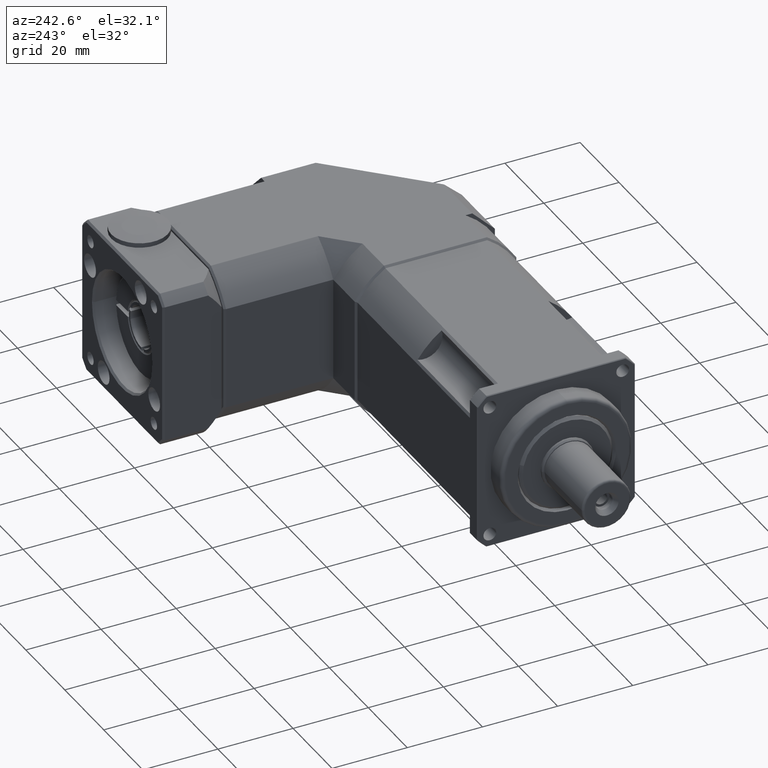
[diagram: clean part render]
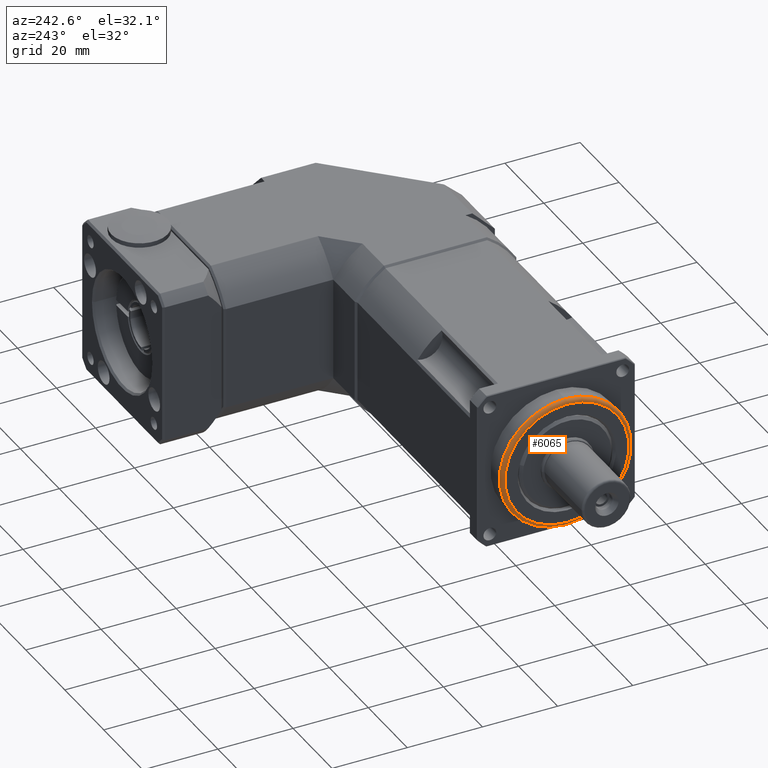
[diagram: same view with one face highlighted and labeled with its STEP entity id]
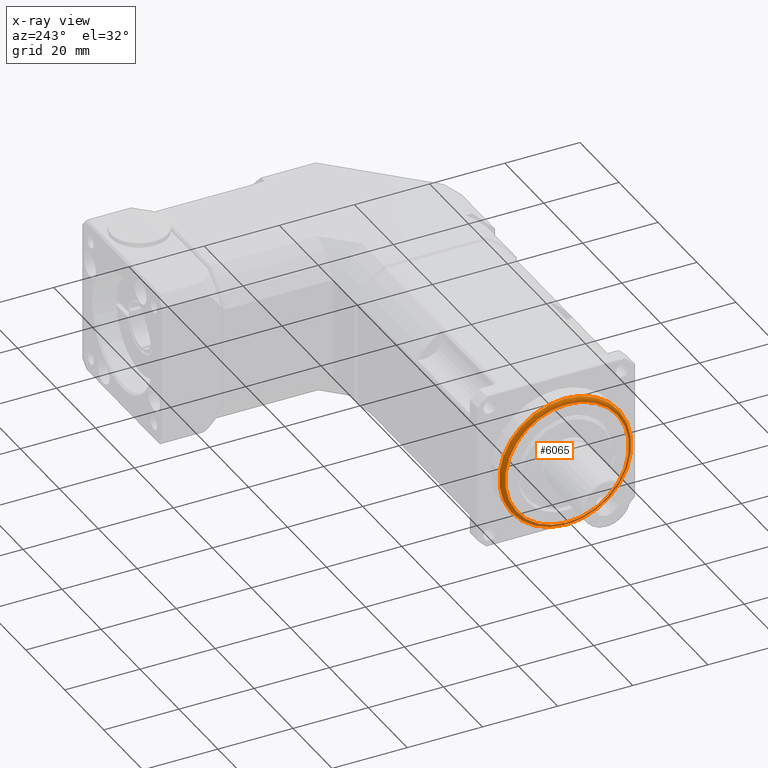
[diagram: x-ray of the same camera — body ghosted, the highlighted face saturated]
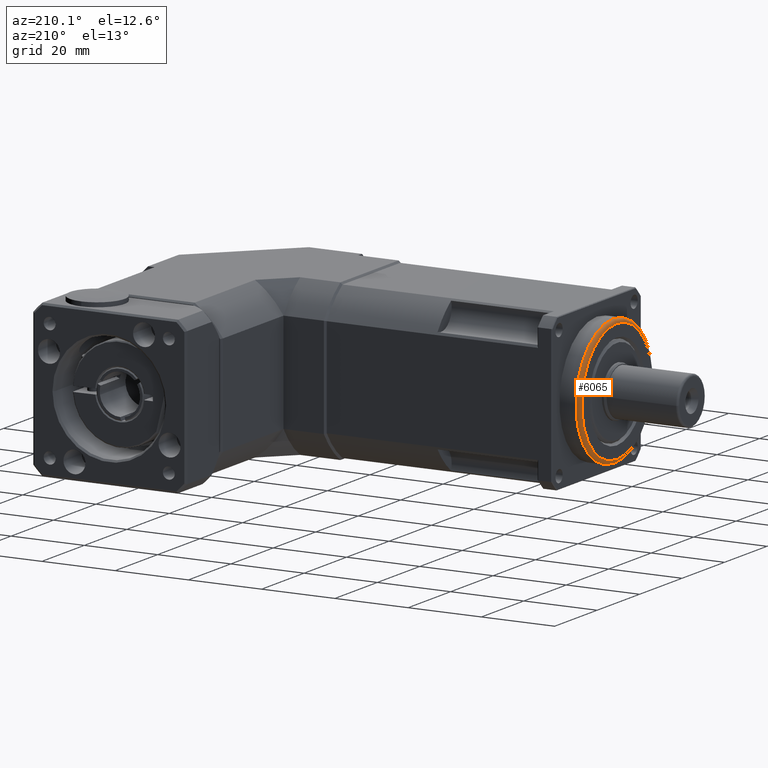
[diagram: same view with one face highlighted and labeled with its STEP entity id]
A machine part, auxiliary view. The second image highlights one B-rep face of the part: STEP entity #6065.
The next image is the same camera in x-ray: the body ghosted, the highlighted face saturated — about 5% of this face is hidden behind the body in this view.
A second angle (auxiliary view) of the same face is appended — the face is thin or edge-on in the first view.
In plain terms, the highlighted toroidal blend (fillet) surface has major radius 16.5 mm and minor (blend) radius 1 mm.
Its self-contained STEP definition (entity closure, byte-faithful):
#794=TOROIDAL_SURFACE('',#6667,16.5,1.);
#996=FACE_BOUND('',#1915,.T.);
#1406=FACE_OUTER_BOUND('',#1914,.T.);
#1914=EDGE_LOOP('',(#4620));
#1915=EDGE_LOOP('',(#4621));
#2343=CIRCLE('',#6666,16.5);
#2344=CIRCLE('',#6668,17.5);
#2790=VERTEX_POINT('',#9973);
#2791=VERTEX_POINT('',#9976);
#3451=EDGE_CURVE('',#2790,#2790,#2343,.T.);
#3452=EDGE_CURVE('',#2791,#2791,#2344,.T.);
#4620=ORIENTED_EDGE('',*,*,#3452,.T.);
#4621=ORIENTED_EDGE('',*,*,#3451,.T.);
#6065=ADVANCED_FACE('',(#1406,#996),#794,.T.);
#6666=AXIS2_PLACEMENT_3D('',#9974,#7975,#7976);
#6667=AXIS2_PLACEMENT_3D('',#9975,#7977,#7978);
#6668=AXIS2_PLACEMENT_3D('',#9977,#7979,#7980);
#7975=DIRECTION('center_axis',(1.,3.3874418421801E-16,-1.95737501449167E-17));
#7976=DIRECTION('ref_axis',(-1.95737501449173E-17,1.71997832643101E-15,
-1.));
#7977=DIRECTION('center_axis',(-1.,-3.3874418421801E-16,1.95737501449167E-17));
#7978=DIRECTION('ref_axis',(0.,-1.72560378684596E-15,1.));
#7979=DIRECTION('center_axis',(-1.,-3.3874418421801E-16,1.95737501449167E-17));
#7980=DIRECTION('ref_axis',(-1.95737501449173E-17,1.71997832643101E-15,
-1.));
#9973=CARTESIAN_POINT('',(-39.3082135047404,6.05267846509051,11.9286399548234));
#9974=CARTESIAN_POINT('Origin',(-39.3082135047404,6.05267846509054,-4.5713600451766));
#9975=CARTESIAN_POINT('Origin',(-38.3082135047404,6.05267846509054,-4.5713600451766));
#9976=CARTESIAN_POINT('',(-38.3082135047404,6.05267846509052,12.9286399548234));
#9977=CARTESIAN_POINT('Origin',(-38.3082135047404,6.05267846509054,-4.5713600451766));